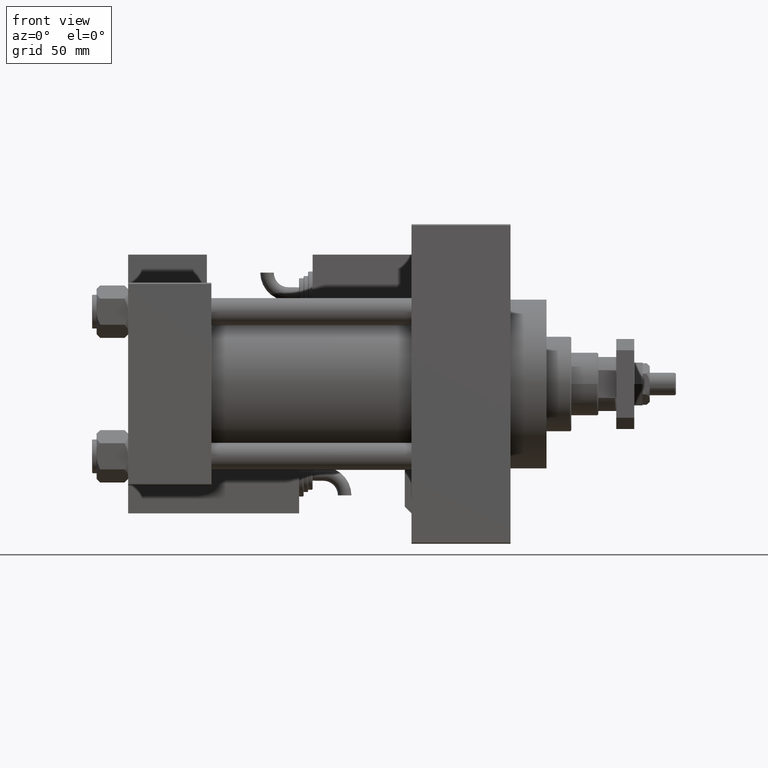
[diagram: clean part render]
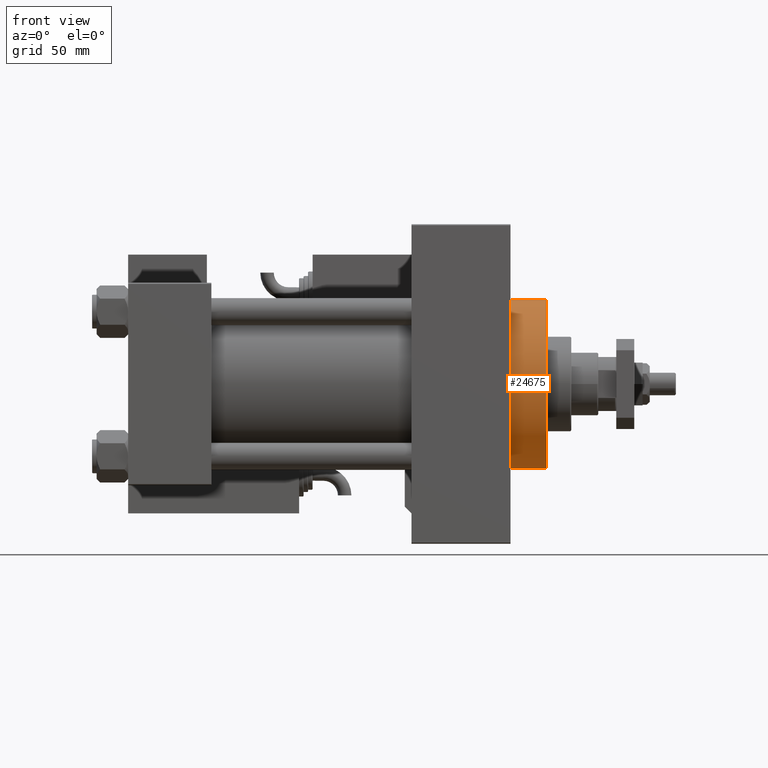
[diagram: same view with one face highlighted and labeled with its STEP entity id]
A machine part, front view. The second image highlights one B-rep face of the part: STEP entity #24675.
In plain terms, the highlighted cylindrical surface (partial cylindrical patch) has radius 37.5 mm, axis along (-1, -0, -0).
Its self-contained STEP definition (entity closure, byte-faithful):
#38 = VERTEX_POINT ( 'NONE', #51036 ) ;
#908 = VECTOR ( 'NONE', #51583, 1000.000000000000000 ) ;
#3554 = DIRECTION ( 'NONE',  ( 1.000000000000000000, 0.000000000000000000, 0.000000000000000000 ) ) ;
#3579 = CYLINDRICAL_SURFACE ( 'NONE', #19686, 37.50000000000000711 ) ;
#4244 = CARTESIAN_POINT ( 'NONE',  ( 169.9999999999999716, 0.000000000000000000, 0.000000000000000000 ) ) ;
#5845 = EDGE_CURVE ( 'NONE', #15237, #42644, #25975, .T. ) ;
#8628 = CIRCLE ( 'NONE', #39685, 37.50000000000000711 ) ;
#12877 = DIRECTION ( 'NONE',  ( 1.000000000000000000, 0.000000000000000000, 0.000000000000000000 ) ) ;
#15237 = VERTEX_POINT ( 'NONE', #35250 ) ;
#16387 = FACE_OUTER_BOUND ( 'NONE', #19571, .T. ) ;
#17105 = CARTESIAN_POINT ( 'NONE',  ( 186.0000000000000000, 0.000000000000000000, 37.50000000000000711 ) ) ;
#18847 = EDGE_CURVE ( 'NONE', #23174, #15237, #39045, .T. ) ;
#19571 = EDGE_LOOP ( 'NONE', ( #22495, #39975, #28744, #26240 ) ) ;
#19686 = AXIS2_PLACEMENT_3D ( 'NONE', #54209, #21362, #50315 ) ;
#21207 = DIRECTION ( 'NONE',  ( 0.000000000000000000, 0.000000000000000000, -1.000000000000000000 ) ) ;
#21302 = AXIS2_PLACEMENT_3D ( 'NONE', #4244, #12877, #21207 ) ;
#21362 = DIRECTION ( 'NONE',  ( -1.000000000000000000, -0.000000000000000000, -0.000000000000000000 ) ) ;
#22495 = ORIENTED_EDGE ( 'NONE', *, *, #37046, .F. ) ;
#23174 = VERTEX_POINT ( 'NONE', #44809 ) ;
#24675 = ADVANCED_FACE ( 'NONE', ( #16387 ), #3579, .T. ) ;
#25975 = CIRCLE ( 'NONE', #21302, 37.50000000000000711 ) ;
#26240 = ORIENTED_EDGE ( 'NONE', *, *, #5845, .T. ) ;
#28079 = VECTOR ( 'NONE', #34886, 1000.000000000000000 ) ;
#28744 = ORIENTED_EDGE ( 'NONE', *, *, #18847, .T. ) ;
#29554 = CARTESIAN_POINT ( 'NONE',  ( 169.9999999999999716, 4.592425496802575156E-15, -37.50000000000000711 ) ) ;
#30435 = CARTESIAN_POINT ( 'NONE',  ( 186.0000000000000000, 4.592425496802575156E-15, -37.50000000000000711 ) ) ;
#33298 = DIRECTION ( 'NONE',  ( 0.000000000000000000, 0.000000000000000000, -1.000000000000000000 ) ) ;
#33573 = CARTESIAN_POINT ( 'NONE',  ( 186.0000000000000000, 0.000000000000000000, 0.000000000000000000 ) ) ;
#34886 = DIRECTION ( 'NONE',  ( -1.000000000000000000, -0.000000000000000000, -0.000000000000000000 ) ) ;
#35250 = CARTESIAN_POINT ( 'NONE',  ( 169.9999999999999716, 0.000000000000000000, 37.50000000000000711 ) ) ;
#37046 = EDGE_CURVE ( 'NONE', #38, #42644, #38514, .T. ) ;
#38514 = LINE ( 'NONE', #30435, #28079 ) ;
#39045 = LINE ( 'NONE', #17105, #908 ) ;
#39685 = AXIS2_PLACEMENT_3D ( 'NONE', #33573, #3554, #33298 ) ;
#39975 = ORIENTED_EDGE ( 'NONE', *, *, #47393, .F. ) ;
#42644 = VERTEX_POINT ( 'NONE', #29554 ) ;
#44809 = CARTESIAN_POINT ( 'NONE',  ( 186.0000000000000000, 0.000000000000000000, 37.50000000000000711 ) ) ;
#47393 = EDGE_CURVE ( 'NONE', #23174, #38, #8628, .T. ) ;
#50315 = DIRECTION ( 'NONE',  ( 0.000000000000000000, 0.000000000000000000, 1.000000000000000000 ) ) ;
#51036 = CARTESIAN_POINT ( 'NONE',  ( 186.0000000000000000, 4.592425496802575156E-15, -37.50000000000000711 ) ) ;
#51583 = DIRECTION ( 'NONE',  ( -1.000000000000000000, -0.000000000000000000, -0.000000000000000000 ) ) ;
#54209 = CARTESIAN_POINT ( 'NONE',  ( 186.0000000000000000, 0.000000000000000000, 0.000000000000000000 ) ) ;